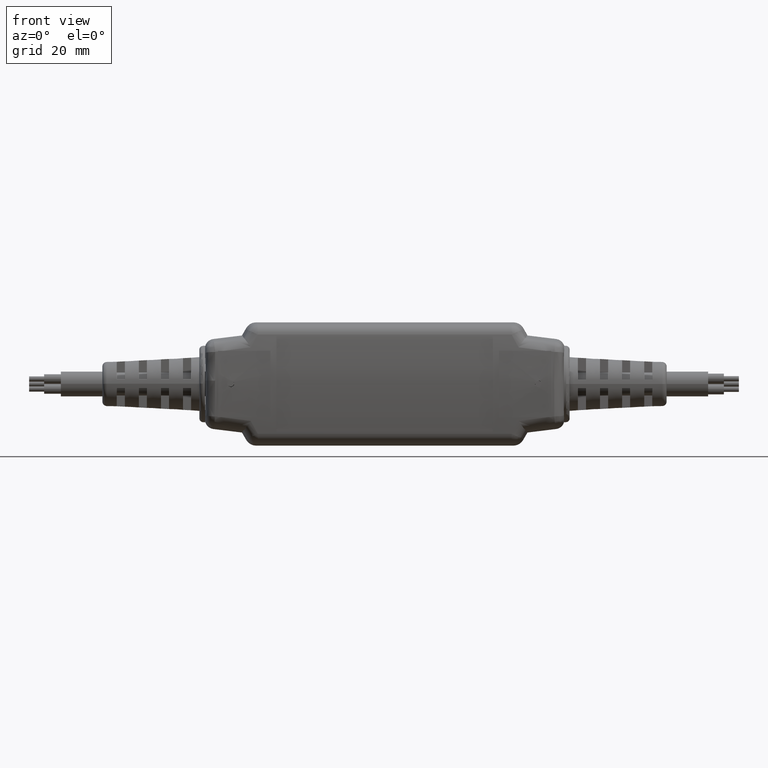
[diagram: clean part render]
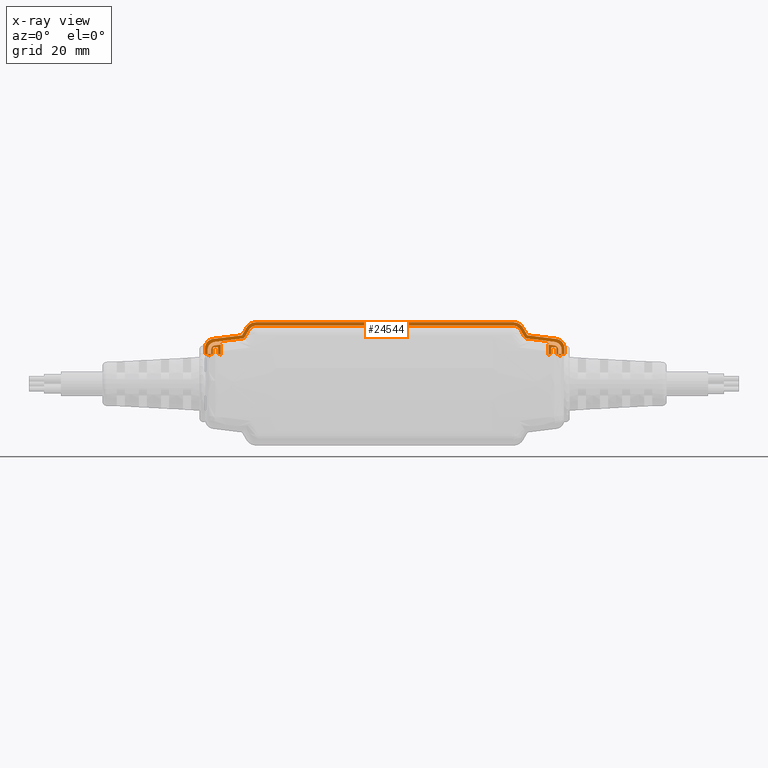
[diagram: x-ray — body ghosted, one internal face saturated and labeled with its STEP entity id]
A machine part, front view, then the same camera in x-ray: the body is ghosted and one INTERNAL B-rep face — a face not visible from any outside direction — is saturated and labeled: STEP entity #24544.
In plain terms, the highlighted planar face has unit normal (0, -1, 0).
Its self-contained STEP definition (entity closure, byte-faithful):
#41 = EDGE_CURVE ( 'NONE', #25325, #22077, #28038, .T. ) ;
#85 = DIRECTION ( 'NONE',  ( 1.000000000000000000, 7.811323723728241151E-34, 1.231274605858855692E-16 ) ) ;
#123 = DIRECTION ( 'NONE',  ( -1.000000000000000000, 0.000000000000000000, 0.000000000000000000 ) ) ;
#196 = PLANE ( 'NONE',  #10932 ) ;
#290 = ORIENTED_EDGE ( 'NONE', *, *, #3641, .F. ) ;
#393 = EDGE_CURVE ( 'NONE', #17405, #26336, #9458, .T. ) ;
#474 = CARTESIAN_POINT ( 'NONE',  ( 2.193936532521163496, 0.02195188560991318677, 0.4832718722922019761 ) ) ;
#497 = LINE ( 'NONE', #2309, #23748 ) ;
#509 = CARTESIAN_POINT ( 'NONE',  ( -1.864769649509606442, 0.02195188560991318677, 0.5463574545593754550 ) ) ;
#624 = CIRCLE ( 'NONE', #18016, 0.1274999999999999467 ) ;
#652 = CARTESIAN_POINT ( 'NONE',  ( -1.915653445400710808, 0.02195188560991318677, 0.5360488502115947629 ) ) ;
#762 = CARTESIAN_POINT ( 'NONE',  ( -2.263999999999999790, 0.02195188560991318677, 0.3919999999999775886 ) ) ;
#789 = LINE ( 'NONE', #28366, #5642 ) ;
#828 = EDGE_CURVE ( 'NONE', #26299, #26961, #3037, .T. ) ;
#888 = CARTESIAN_POINT ( 'NONE',  ( 2.344499999999999584, 0.02195188560991317983, 0.5292467826783000540 ) ) ;
#1062 = CARTESIAN_POINT ( 'NONE',  ( -2.286500000000000199, 0.02195188560991318677, 0.3669999999999775109 ) ) ;
#1130 = CARTESIAN_POINT ( 'NONE',  ( -2.344500000000000028, 0.02195188560991318677, 0.4627866221473150854 ) ) ;
#1161 = VECTOR ( 'NONE', #85, 39.37007874015748143 ) ;
#1174 = LINE ( 'NONE', #17199, #5734 ) ;
#1195 = CARTESIAN_POINT ( 'NONE',  ( 2.263999999999999790, 0.02195188560991318677, 0.3919999999999777551 ) ) ;
#1329 = DIRECTION ( 'NONE',  ( -0.9925461516413227603, 7.731507567897354636E-19, 0.1218693434051404539 ) ) ;
#1407 = DIRECTION ( 'NONE',  ( 3.081487911019576339E-33, 6.344095530403291597E-18, 1.000000000000000000 ) ) ;
#1426 = AXIS2_PLACEMENT_3D ( 'NONE', #10788, #15142, #26695 ) ;
#1472 = ORIENTED_EDGE ( 'NONE', *, *, #9272, .T. ) ;
#1556 = CARTESIAN_POINT ( 'NONE',  ( -1.776662360926151596, 0.02195188560991317983, 0.7767884703206289210 ) ) ;
#1612 = DIRECTION ( 'NONE',  ( 6.621448624706696539E-49, -1.000000000000000000, 2.283887004554346313E-16 ) ) ;
#1699 = CARTESIAN_POINT ( 'NONE',  ( 2.223938055598596808, 0.02195188560991318677, 0.4795881484547210860 ) ) ;
#1791 = ORIENTED_EDGE ( 'NONE', *, *, #14974, .F. ) ;
#1822 = DIRECTION ( 'NONE',  ( 3.081487911019576339E-33, 6.344095530403292367E-18, 1.000000000000000000 ) ) ;
#1896 = ORIENTED_EDGE ( 'NONE', *, *, #16122, .T. ) ;
#1913 = DIRECTION ( 'NONE',  ( 1.000000000000000000, -4.163215699622375742E-50, -3.081487911019578049E-33 ) ) ;
#1976 = VECTOR ( 'NONE', #25384, 39.37007874015748143 ) ;
#2005 = EDGE_CURVE ( 'NONE', #3880, #3658, #22269, .T. ) ;
#2031 = ORIENTED_EDGE ( 'NONE', *, *, #828, .T. ) ;
#2047 = ORIENTED_EDGE ( 'NONE', *, *, #3287, .F. ) ;
#2118 = VERTEX_POINT ( 'NONE', #15275 ) ;
#2148 = CARTESIAN_POINT ( 'NONE',  ( 1.823405385324248451, 0.02195188560991318677, 0.6148271771636935057 ) ) ;
#2289 = EDGE_CURVE ( 'NONE', #25572, #14727, #7164, .T. ) ;
#2298 =( BOUNDED_CURVE ( )  B_SPLINE_CURVE ( 3, ( #12664, #26461, #888, #28768 ),
 .UNSPECIFIED., .F., .T. ) 
 B_SPLINE_CURVE_WITH_KNOTS ( ( 4, 4 ),
 ( 6.183164987832681092, 7.630805771195890763 ),
 .UNSPECIFIED. ) 
 CURVE ( )  GEOMETRIC_REPRESENTATION_ITEM ( )  RATIONAL_B_SPLINE_CURVE ( ( 1.000000000000000000, 0.8328540940731947728, 0.8328540940731947728, 1.000000000000000000 ) ) 
 REPRESENTATION_ITEM ( '' )  );
#2309 = CARTESIAN_POINT ( 'NONE',  ( -2.294031527742058874, 0.02195188560991318677, 0.4709817522554268221 ) ) ;
#2579 = EDGE_CURVE ( 'NONE', #16319, #3658, #2298, .T. ) ;
#2597 = DIRECTION ( 'NONE',  ( -1.000000000000000000, 4.163215699622375742E-50, 3.081487911019578049E-33 ) ) ;
#2603 = ORIENTED_EDGE ( 'NONE', *, *, #25639, .T. ) ;
#2649 = CARTESIAN_POINT ( 'NONE',  ( 2.206500000000000128, 0.02195188560991318677, 0.4464664285633355711 ) ) ;
#2708 = VERTEX_POINT ( 'NONE', #14447 ) ;
#2717 = DIRECTION ( 'NONE',  ( -0.9925461516413227603, 7.731507567897382562E-19, 0.1218693434051408842 ) ) ;
#2920 = ORIENTED_EDGE ( 'NONE', *, *, #22713, .T. ) ;
#2968 = VECTOR ( 'NONE', #15564, 39.37007874015748143 ) ;
#3019 = LINE ( 'NONE', #23309, #21004 ) ;
#3037 = LINE ( 'NONE', #26219, #8783 ) ;
#3044 = ORIENTED_EDGE ( 'NONE', *, *, #5739, .T. ) ;
#3062 = EDGE_CURVE ( 'NONE', #13336, #22922, #19138, .T. ) ;
#3068 = DIRECTION ( 'NONE',  ( 3.081487911019576339E-33, 6.344095530403292367E-18, 1.000000000000000000 ) ) ;
#3172 = LINE ( 'NONE', #15114, #26141 ) ;
#3200 = DIRECTION ( 'NONE',  ( -1.000000000000000000, 4.163215699622375742E-50, 3.081487911019577365E-33 ) ) ;
#3275 = CARTESIAN_POINT ( 'NONE',  ( 2.156293839814855229, 0.02195188560991318677, 0.3919999999999787543 ) ) ;
#3287 = EDGE_CURVE ( 'NONE', #16210, #10873, #17536, .T. ) ;
#3480 = CARTESIAN_POINT ( 'NONE',  ( -1.804039906487935108, 0.02195188560991318677, 0.7293691704210883975 ) ) ;
#3530 = VERTEX_POINT ( 'NONE', #18502 ) ;
#3600 = DIRECTION ( 'NONE',  ( 0.4999999999999988898, 5.494147893364567314E-18, 0.8660254037844391517 ) ) ;
#3607 = ORIENTED_EDGE ( 'NONE', *, *, #25117, .F. ) ;
#3615 = EDGE_CURVE ( 'NONE', #3530, #26299, #20877, .T. ) ;
#3641 = EDGE_CURVE ( 'NONE', #9752, #8658, #21899, .T. ) ;
#3658 = VERTEX_POINT ( 'NONE', #26333 ) ;
#3701 = CARTESIAN_POINT ( 'NONE',  ( 2.213507487245796490, 0.02195188560991318677, 0.5035378322827116504 ) ) ;
#3751 = LINE ( 'NONE', #13173, #25966 ) ;
#3880 = VERTEX_POINT ( 'NONE', #14569 ) ;
#3975 = EDGE_CURVE ( 'NONE', #17762, #14720, #15156, .T. ) ;
#4033 = VECTOR ( 'NONE', #1329, 39.37007874015748854 ) ;
#4226 = DIRECTION ( 'NONE',  ( 0.5000000000000001110, -5.494147893364562691E-18, -0.8660254037844385966 ) ) ;
#4255 = CARTESIAN_POINT ( 'NONE',  ( -2.234838855182186279, 0.02195188560991318677, 0.5870607597139151368 ) ) ;
#4281 = CIRCLE ( 'NONE', #12497, 0.05749999999999986372 ) ;
#4293 = CIRCLE ( 'NONE', #1426, 0.04499999999999965833 ) ;
#4396 = VECTOR ( 'NONE', #10127, 39.37007874015748143 ) ;
#4504 = CARTESIAN_POINT ( 'NONE',  ( -1.856892408041317610, 0.02195188560991318677, 0.5926626003398335341 ) ) ;
#4603 = EDGE_CURVE ( 'NONE', #14727, #27653, #14181, .T. ) ;
#4710 = DIRECTION ( 'NONE',  ( 0.4999999999999997224, 5.494147893364564232E-18, 0.8660254037844388186 ) ) ;
#4824 = VECTOR ( 'NONE', #3068, 39.37007874015748143 ) ;
#5001 = ORIENTED_EDGE ( 'NONE', *, *, #13079, .F. ) ;
#5007 = EDGE_CURVE ( 'NONE', #28267, #27523, #25143, .T. ) ;
#5267 = CIRCLE ( 'NONE', #11109, 0.04500000000000019956 ) ;
#5418 = CARTESIAN_POINT ( 'NONE',  ( -3.440243432900442766, 0.02195188560991318677, 0.3919999999999775331 ) ) ;
#5429 = DIRECTION ( 'NONE',  ( -0.7660444431189752379, -4.077906001611009430E-18, -0.6427876096865424715 ) ) ;
#5506 = ORIENTED_EDGE ( 'NONE', *, *, #19780, .T. ) ;
#5642 = VECTOR ( 'NONE', #27907, 39.37007874015748854 ) ;
#5653 = EDGE_CURVE ( 'NONE', #15229, #2118, #21505, .T. ) ;
#5734 = VECTOR ( 'NONE', #17932, 39.37007874015748143 ) ;
#5739 = EDGE_CURVE ( 'NONE', #6940, #2708, #3172, .T. ) ;
#5874 = EDGE_CURVE ( 'NONE', #8658, #7186, #23797, .T. ) ;
#5876 = CARTESIAN_POINT ( 'NONE',  ( -1.774454827976430948, 0.02195188560991318677, 0.6996120295489280938 ) ) ;
#6031 = CARTESIAN_POINT ( 'NONE',  ( 2.213507487245796934, 0.02195188560991318677, 0.5035378322827115394 ) ) ;
#6033 = CARTESIAN_POINT ( 'NONE',  ( 2.241500000000000270, 0.02195188560991318677, 0.7761379704510726896 ) ) ;
#6058 =( BOUNDED_CURVE ( )  B_SPLINE_CURVE ( 3, ( #13342, #1556, #6818, #27152 ),
 .UNSPECIFIED., .F., .T. ) 
 B_SPLINE_CURVE_WITH_KNOTS ( ( 4, 4 ),
 ( 5.761365397245762132, 6.805005217113410332 ),
 .UNSPECIFIED. ) 
 CURVE ( )  GEOMETRIC_REPRESENTATION_ITEM ( )  RATIONAL_B_SPLINE_CURVE ( ( 1.000000000000000000, 0.9112756439590405932, 0.9112756439590405932, 1.000000000000000000 ) ) 
 REPRESENTATION_ITEM ( '' )  );
#6157 = VECTOR ( 'NONE', #20706, 39.37007874015748143 ) ;
#6331 = DIRECTION ( 'NONE',  ( -1.000000000000000000, 0.000000000000000000, 0.000000000000000000 ) ) ;
#6452 = CARTESIAN_POINT ( 'NONE',  ( 2.138500000000000512, 0.02195188560991318677, 0.5127475936686164415 ) ) ;
#6537 = VERTEX_POINT ( 'NONE', #9604 ) ;
#6538 = LINE ( 'NONE', #15770, #17588 ) ;
#6599 = EDGE_CURVE ( 'NONE', #21293, #14720, #16850, .T. ) ;
#6696 = DIRECTION ( 'NONE',  ( 1.714226300718495630E-34, -1.000000000000000000, 2.283887004554346806E-16 ) ) ;
#6780 = ORIENTED_EDGE ( 'NONE', *, *, #10704, .F. ) ;
#6818 = CARTESIAN_POINT ( 'NONE',  ( -1.729291637138610449, 0.02195188560991319024, 0.8041379704510728255 ) ) ;
#6844 = CARTESIAN_POINT ( 'NONE',  ( 2.171499999999999098, 0.02195188560991318677, 0.3919999999999775331 ) ) ;
#6940 = VERTEX_POINT ( 'NONE', #3275 ) ;
#7000 = CARTESIAN_POINT ( 'NONE',  ( -1.862376528494548822, 0.02195188560991318677, 0.6373271771636932481 ) ) ;
#7086 = EDGE_CURVE ( 'NONE', #20277, #29200, #9933, .T. ) ;
#7119 = VECTOR ( 'NONE', #23823, 39.37007874015748854 ) ;
#7125 = LINE ( 'NONE', #652, #29407 ) ;
#7164 = CIRCLE ( 'NONE', #8632, 0.1025000000000000633 ) ;
#7186 = VERTEX_POINT ( 'NONE', #7934 ) ;
#7201 = ORIENTED_EDGE ( 'NONE', *, *, #19820, .T. ) ;
#7333 = CIRCLE ( 'NONE', #23275, 0.1274999999999999467 ) ;
#7476 = LINE ( 'NONE', #12616, #7119 ) ;
#7543 = CARTESIAN_POINT ( 'NONE',  ( 2.171499999999999986, 0.02195188560991318677, 0.4634217051216981131 ) ) ;
#7762 = ORIENTED_EDGE ( 'NONE', *, *, #2005, .F. ) ;
#7830 = EDGE_CURVE ( 'NONE', #21293, #20547, #25550, .T. ) ;
#7880 = CARTESIAN_POINT ( 'NONE',  ( -2.218991607699027480, 0.02195188560991318677, 0.5482024091065709204 ) ) ;
#7934 = CARTESIAN_POINT ( 'NONE',  ( 2.263999999999999790, 0.02195188560991318677, 0.4464664285633355711 ) ) ;
#8292 = CARTESIAN_POINT ( 'NONE',  ( -1.674536546015044536, 0.02195188560991318677, 0.8041379704510728255 ) ) ;
#8302 = CARTESIAN_POINT ( 'NONE',  ( -2.206500000000000128, 0.02195188560991318677, 0.4464664285633354046 ) ) ;
#8632 = AXIS2_PLACEMENT_3D ( 'NONE', #8302, #26501, #12839 ) ;
#8633 = CARTESIAN_POINT ( 'NONE',  ( -2.171499999999999986, 0.02195188560991318677, 0.4763054132773840155 ) ) ;
#8658 = VERTEX_POINT ( 'NONE', #13814 ) ;
#8750 = CARTESIAN_POINT ( 'NONE',  ( -2.344500000000000473, 0.02195188560991318677, 0.3919999999999775331 ) ) ;
#8783 = VECTOR ( 'NONE', #5429, 39.37007874015748854 ) ;
#8803 = DIRECTION ( 'NONE',  ( 0.5000000000000002220, -5.494147893364561151E-18, -0.8660254037844384856 ) ) ;
#8955 = EDGE_CURVE ( 'NONE', #29778, #13805, #27302, .T. ) ;
#8969 = CARTESIAN_POINT ( 'NONE',  ( -2.300610301673009950, 0.02195188560991317983, 0.5789850415365909164 ) ) ;
#8986 = EDGE_CURVE ( 'NONE', #19113, #6940, #3019, .T. ) ;
#8994 = VECTOR ( 'NONE', #1913, 39.37007874015748143 ) ;
#9008 = CARTESIAN_POINT ( 'NONE',  ( -1.664036588993915933, 0.02195188560991318677, 0.7633620295489271790 ) ) ;
#9016 = EDGE_CURVE ( 'NONE', #6537, #18613, #22020, .T. ) ;
#9020 = DIRECTION ( 'NONE',  ( 1.714226300718495630E-34, -1.000000000000000000, 2.283887004554346806E-16 ) ) ;
#9051 = CARTESIAN_POINT ( 'NONE',  ( 1.776662360926151596, 0.02195188560991314861, 0.7767884703206293651 ) ) ;
#9256 = FACE_OUTER_BOUND ( 'NONE', #22160, .T. ) ;
#9272 = EDGE_CURVE ( 'NONE', #26961, #10111, #6538, .T. ) ;
#9278 = EDGE_CURVE ( 'NONE', #11996, #12338, #13528, .T. ) ;
#9337 = DIRECTION ( 'NONE',  ( -3.081487911019576339E-33, -6.344095530403291597E-18, -1.000000000000000000 ) ) ;
#9458 =( BOUNDED_CURVE ( )  B_SPLINE_CURVE ( 3, ( #12642, #16893, #17192, #26443 ),
 .UNSPECIFIED., .F., .T. ) 
 B_SPLINE_CURVE_WITH_KNOTS ( ( 4, 4 ),
 ( 5.558907354727067762, 7.007463259632100261 ),
 .UNSPECIFIED. ) 
 CURVE ( )  GEOMETRIC_REPRESENTATION_ITEM ( )  RATIONAL_B_SPLINE_CURVE ( ( 1.000000000000000000, 0.8326520280856734013, 0.8326520280856734013, 1.000000000000000000 ) ) 
 REPRESENTATION_ITEM ( '' )  );
#9528 = CARTESIAN_POINT ( 'NONE',  ( -2.263999999999999790, 0.02195188560991318677, 0.4464664285633354046 ) ) ;
#9604 = CARTESIAN_POINT ( 'NONE',  ( -2.263999999999999790, 0.02195188560991318677, 0.3919999999999775886 ) ) ;
#9746 = CARTESIAN_POINT ( 'NONE',  ( 2.263999999999999790, 0.02195188560991318677, 0.3919999999999777551 ) ) ;
#9752 = VERTEX_POINT ( 'NONE', #16014 ) ;
#9795 = CARTESIAN_POINT ( 'NONE',  ( -2.307193416829814048, 0.02195188560991318677, 0.5781767366326896473 ) ) ;
#9802 = LINE ( 'NONE', #19047, #15805 ) ;
#9809 = VECTOR ( 'NONE', #4226, 39.37007874015748854 ) ;
#9830 = ORIENTED_EDGE ( 'NONE', *, *, #15869, .T. ) ;
#9933 = LINE ( 'NONE', #9795, #14882 ) ;
#10085 = CIRCLE ( 'NONE', #27022, 0.05749999999999986372 ) ;
#10111 = VERTEX_POINT ( 'NONE', #13195 ) ;
#10127 = DIRECTION ( 'NONE',  ( -1.000000000000000000, 4.163215699622375742E-50, 3.081487911019578049E-33 ) ) ;
#10214 = VECTOR ( 'NONE', #17153, 39.37007874015748143 ) ;
#10417 = VERTEX_POINT ( 'NONE', #16495 ) ;
#10620 = EDGE_CURVE ( 'NONE', #18945, #19113, #21793, .T. ) ;
#10704 = EDGE_CURVE ( 'NONE', #12338, #28267, #7333, .T. ) ;
#10715 = VECTOR ( 'NONE', #19537, 39.37007874015748143 ) ;
#10788 = CARTESIAN_POINT ( 'NONE',  ( 1.862376528494548378, 0.02195188560991318677, 0.6373271771636930261 ) ) ;
#10873 = VERTEX_POINT ( 'NONE', #6452 ) ;
#10915 = CARTESIAN_POINT ( 'NONE',  ( 1.856892408041316722, 0.02195188560991318677, 0.5926626003398337561 ) ) ;
#10932 = AXIS2_PLACEMENT_3D ( 'NONE', #27888, #1612, #19474 ) ;
#11054 = CARTESIAN_POINT ( 'NONE',  ( -2.181148857572367206, 0.02195188560991319024, 0.4848420013457589994 ) ) ;
#11109 = AXIS2_PLACEMENT_3D ( 'NONE', #7000, #6696, #23193 ) ;
#11170 = DIRECTION ( 'NONE',  ( -1.000000000000000000, 0.000000000000000000, 0.000000000000000000 ) ) ;
#11391 = EDGE_CURVE ( 'NONE', #20547, #13898, #28331, .T. ) ;
#11444 = CARTESIAN_POINT ( 'NONE',  ( 1.804039906487935330, 0.02195188560991318677, 0.7293691704210890636 ) ) ;
#11445 = DIRECTION ( 'NONE',  ( 0.9925461516413227603, 7.731507567897377747E-19, 0.1218693434051408425 ) ) ;
#11479 = VECTOR ( 'NONE', #21537, 39.37007874015748143 ) ;
#11576 = LINE ( 'NONE', #19822, #1976 ) ;
#11605 = DIRECTION ( 'NONE',  ( -0.7660444431189752379, 4.077906001611009430E-18, 0.6427876096865424715 ) ) ;
#11614 = CARTESIAN_POINT ( 'NONE',  ( -2.309000000000000163, 0.02195188560991318677, 0.4464664285633354046 ) ) ;
#11632 = CARTESIAN_POINT ( 'NONE',  ( -2.138500000000000512, 0.02195188560991317983, 0.3770691955741050094 ) ) ;
#11828 = DIRECTION ( 'NONE',  ( -0.9925461516413227603, -7.731507567897382562E-19, -0.1218693434051408842 ) ) ;
#11871 = DIRECTION ( 'NONE',  ( -1.000000000000000000, 0.000000000000000000, 0.000000000000000000 ) ) ;
#11996 = VERTEX_POINT ( 'NONE', #9008 ) ;
#12033 = LINE ( 'NONE', #16562, #25262 ) ;
#12055 = CARTESIAN_POINT ( 'NONE',  ( -2.241499999999999826, 0.02195188560991318677, 0.4597379812842175006 ) ) ;
#12057 = VERTEX_POINT ( 'NONE', #1130 ) ;
#12338 = VERTEX_POINT ( 'NONE', #21659 ) ;
#12497 = AXIS2_PLACEMENT_3D ( 'NONE', #13738, #20692, #11170 ) ;
#12524 = ORIENTED_EDGE ( 'NONE', *, *, #19168, .F. ) ;
#12616 = CARTESIAN_POINT ( 'NONE',  ( 2.286499999999999311, 0.02195188560991318677, 0.3669999999999786211 ) ) ;
#12642 = CARTESIAN_POINT ( 'NONE',  ( -2.223938055598595920, 0.02195188560991318677, 0.4795881484547213636 ) ) ;
#12664 = CARTESIAN_POINT ( 'NONE',  ( 2.234838855182186279, 0.02195188560991318677, 0.5870607597139152478 ) ) ;
#12665 = VERTEX_POINT ( 'NONE', #10915 ) ;
#12701 = ORIENTED_EDGE ( 'NONE', *, *, #8986, .T. ) ;
#12839 = DIRECTION ( 'NONE',  ( -1.000000000000000000, 0.000000000000000000, 0.000000000000000000 ) ) ;
#12923 = ORIENTED_EDGE ( 'NONE', *, *, #7830, .T. ) ;
#13039 = EDGE_CURVE ( 'NONE', #26855, #29778, #20495, .T. ) ;
#13044 = CARTESIAN_POINT ( 'NONE',  ( -2.213507487245795602, 0.02195188560991318677, 0.5035378322827113173 ) ) ;
#13079 = EDGE_CURVE ( 'NONE', #15531, #24293, #4281, .T. ) ;
#13127 = VECTOR ( 'NONE', #2717, 39.37007874015748854 ) ;
#13173 = CARTESIAN_POINT ( 'NONE',  ( 2.309000000000000163, 0.02195188560991318677, 0.3919999999999777551 ) ) ;
#13195 = CARTESIAN_POINT ( 'NONE',  ( -2.316293839814855371, 0.02195188560991318677, 0.3919999999999775331 ) ) ;
#13304 = EDGE_CURVE ( 'NONE', #17286, #15531, #18118, .T. ) ;
#13312 = DIRECTION ( 'NONE',  ( -3.081487911019576339E-33, -6.344095530403292367E-18, -1.000000000000000000 ) ) ;
#13336 = VERTEX_POINT ( 'NONE', #18830 ) ;
#13342 = CARTESIAN_POINT ( 'NONE',  ( -1.804039906487935108, 0.02195188560991318677, 0.7293691704210883975 ) ) ;
#13461 = ORIENTED_EDGE ( 'NONE', *, *, #4603, .F. ) ;
#13489 = CARTESIAN_POINT ( 'NONE',  ( 0.7499034454007098560, 0.02195188560991320065, 2.555187079135014638 ) ) ;
#13528 = LINE ( 'NONE', #19730, #1161 ) ;
#13738 = CARTESIAN_POINT ( 'NONE',  ( -2.206500000000000128, 0.02195188560991318677, 0.4464664285633354046 ) ) ;
#13805 = VERTEX_POINT ( 'NONE', #21482 ) ;
#13814 = CARTESIAN_POINT ( 'NONE',  ( 2.264000000000000234, 0.02195188560991318677, 0.3919999999999777551 ) ) ;
#13883 = CARTESIAN_POINT ( 'NONE',  ( -2.256706160185145027, 0.02195188560991318677, 0.3919999999999775886 ) ) ;
#13898 = VERTEX_POINT ( 'NONE', #17701 ) ;
#13909 = CARTESIAN_POINT ( 'NONE',  ( 2.234838855182186279, 0.02195188560991318677, 0.5870607597139152478 ) ) ;
#14181 = LINE ( 'NONE', #4504, #28677 ) ;
#14203 = ORIENTED_EDGE ( 'NONE', *, *, #27112, .F. ) ;
#14399 = VECTOR ( 'NONE', #26204, 39.37007874015748854 ) ;
#14447 = CARTESIAN_POINT ( 'NONE',  ( 2.138500000000002732, 0.02195188560991031060, 0.3770691955741065082 ) ) ;
#14550 = ORIENTED_EDGE ( 'NONE', *, *, #21706, .T. ) ;
#14569 = CARTESIAN_POINT ( 'NONE',  ( 2.344500000000000028, 0.02195188560991318677, 0.3919999999999775331 ) ) ;
#14720 = VERTEX_POINT ( 'NONE', #16978 ) ;
#14727 = VERTEX_POINT ( 'NONE', #7880 ) ;
#14882 = VECTOR ( 'NONE', #23688, 39.37007874015748854 ) ;
#14965 = CARTESIAN_POINT ( 'NONE',  ( 2.171499999999999986, 0.02195188560991318677, 0.7761379704510726896 ) ) ;
#14974 = EDGE_CURVE ( 'NONE', #7186, #16210, #10085, .T. ) ;
#15056 = CARTESIAN_POINT ( 'NONE',  ( 2.206500000000000128, 0.02195188560991318677, 0.4464664285633355711 ) ) ;
#15114 = CARTESIAN_POINT ( 'NONE',  ( 2.126500000000000057, 0.02195188560991318677, 0.3669999999999786766 ) ) ;
#15121 = CARTESIAN_POINT ( 'NONE',  ( 2.241500000000001158, 0.02195188560991318330, 0.4703484891206319296 ) ) ;
#15142 = DIRECTION ( 'NONE',  ( 1.714226300718495630E-34, -1.000000000000000000, 2.283887004554346806E-16 ) ) ;
#15156 = LINE ( 'NONE', #15459, #10214 ) ;
#15229 = VERTEX_POINT ( 'NONE', #23966 ) ;
#15275 = CARTESIAN_POINT ( 'NONE',  ( -1.774454827976430948, 0.02195188560991318677, 0.6996120295489280938 ) ) ;
#15303 = ORIENTED_EDGE ( 'NONE', *, *, #3615, .T. ) ;
#15410 = CARTESIAN_POINT ( 'NONE',  ( -2.171500000000000430, 0.02195188560991318677, 0.4634217051216981687 ) ) ;
#15459 = CARTESIAN_POINT ( 'NONE',  ( -3.440243432900442766, 0.02195188560991318677, 0.3919999999999775331 ) ) ;
#15467 = ORIENTED_EDGE ( 'NONE', *, *, #9016, .F. ) ;
#15531 = VERTEX_POINT ( 'NONE', #13044 ) ;
#15564 = DIRECTION ( 'NONE',  ( -3.081487911019576339E-33, -6.344095530403292367E-18, -1.000000000000000000 ) ) ;
#15770 = CARTESIAN_POINT ( 'NONE',  ( -2.286500000000000199, 0.02195188560991318677, 0.3669999999999775109 ) ) ;
#15786 = LINE ( 'NONE', #20500, #8994 ) ;
#15805 = VECTOR ( 'NONE', #11605, 39.37007874015748854 ) ;
#15843 = CARTESIAN_POINT ( 'NONE',  ( 1.729291637138611337, 0.02195188560991314861, 0.8041379704510727144 ) ) ;
#15863 = ORIENTED_EDGE ( 'NONE', *, *, #19021, .F. ) ;
#15869 = EDGE_CURVE ( 'NONE', #12057, #20277, #26176, .T. ) ;
#15946 = EDGE_CURVE ( 'NONE', #15997, #17405, #497, .T. ) ;
#15983 = DIRECTION ( 'NONE',  ( -0.7660444431189752379, 4.077906001611009430E-18, 0.6427876096865424715 ) ) ;
#15997 = VERTEX_POINT ( 'NONE', #20760 ) ;
#15999 = ORIENTED_EDGE ( 'NONE', *, *, #3062, .T. ) ;
#16014 = CARTESIAN_POINT ( 'NONE',  ( 2.309000000000000608, 0.02195188560991318677, 0.3919999999999777551 ) ) ;
#16068 = ORIENTED_EDGE ( 'NONE', *, *, #9278, .F. ) ;
#16122 = EDGE_CURVE ( 'NONE', #18238, #15997, #22255, .T. ) ;
#16182 = EDGE_CURVE ( 'NONE', #26336, #3530, #22840, .T. ) ;
#16210 = VERTEX_POINT ( 'NONE', #6031 ) ;
#16319 = VERTEX_POINT ( 'NONE', #13909 ) ;
#16395 = DIRECTION ( 'NONE',  ( -1.714226300718495630E-34, 1.000000000000000000, -2.283887004554346806E-16 ) ) ;
#16441 = EDGE_CURVE ( 'NONE', #2118, #11996, #624, .T. ) ;
#16495 = CARTESIAN_POINT ( 'NONE',  ( 2.316293839814854483, 0.02195188560991318677, 0.3919999999999786988 ) ) ;
#16562 = CARTESIAN_POINT ( 'NONE',  ( -2.344500000000000028, 0.02195188560991318677, 0.7761379704510726896 ) ) ;
#16615 = VERTEX_POINT ( 'NONE', #8750 ) ;
#16655 = VECTOR ( 'NONE', #8803, 39.37007874015748854 ) ;
#16827 = VECTOR ( 'NONE', #1407, 39.37007874015748143 ) ;
#16850 = LINE ( 'NONE', #6033, #11479 ) ;
#16862 =( BOUNDED_CURVE ( )  B_SPLINE_CURVE ( 3, ( #474, #26044, #21485, #7543 ),
 .UNSPECIFIED., .F., .F. ) 
 B_SPLINE_CURVE_WITH_KNOTS ( ( 4, 4 ),
 ( 2.295151003472595264, 3.988034303706963879 ),
 .UNSPECIFIED. ) 
 CURVE ( )  GEOMETRIC_REPRESENTATION_ITEM ( )  RATIONAL_B_SPLINE_CURVE ( ( 1.000000000000000000, 0.7751015203229185691, 0.7751015203229185691, 1.000000000000000000 ) ) 
 REPRESENTATION_ITEM ( '' )  );
#16893 = CARTESIAN_POINT ( 'NONE',  ( -2.234469474318589999, 0.02195188560991319371, 0.4782950528315023098 ) ) ;
#16978 = CARTESIAN_POINT ( 'NONE',  ( 2.241500000000000270, 0.02195188560991318677, 0.3919999999999775331 ) ) ;
#17079 = CARTESIAN_POINT ( 'NONE',  ( -3.440243432900442766, 0.02195188560991318677, 0.3919999999999775331 ) ) ;
#17153 = DIRECTION ( 'NONE',  ( -1.000000000000000000, 4.163215699622375742E-50, 3.081487911019577365E-33 ) ) ;
#17192 = CARTESIAN_POINT ( 'NONE',  ( -2.241500000000000270, 0.02195188560991318330, 0.4703484891206322072 ) ) ;
#17199 = CARTESIAN_POINT ( 'NONE',  ( -2.138500000000000512, 0.02195188560991318677, 0.7761379704510726896 ) ) ;
#17212 = EDGE_CURVE ( 'NONE', #20620, #17762, #18283, .T. ) ;
#17225 = DIRECTION ( 'NONE',  ( -1.000000000000000000, 0.000000000000000000, 0.000000000000000000 ) ) ;
#17286 = VERTEX_POINT ( 'NONE', #23539 ) ;
#17393 = CARTESIAN_POINT ( 'NONE',  ( 2.218991607699028812, 0.02195188560991318677, 0.5482024091065711424 ) ) ;
#17405 = VERTEX_POINT ( 'NONE', #23071 ) ;
#17448 = ORIENTED_EDGE ( 'NONE', *, *, #11391, .T. ) ;
#17536 = LINE ( 'NONE', #3701, #4033 ) ;
#17588 = VECTOR ( 'NONE', #25020, 39.37007874015748854 ) ;
#17701 = CARTESIAN_POINT ( 'NONE',  ( 2.193936532521163496, 0.02195188560991318677, 0.4832718722922019761 ) ) ;
#17734 = ORIENTED_EDGE ( 'NONE', *, *, #28369, .T. ) ;
#17762 = VERTEX_POINT ( 'NONE', #27325 ) ;
#17793 = CARTESIAN_POINT ( 'NONE',  ( -2.263999999999999790, 0.02195188560991318677, 0.4464664285633354046 ) ) ;
#17932 = DIRECTION ( 'NONE',  ( 3.081487911019576339E-33, 6.344095530403291597E-18, 1.000000000000000000 ) ) ;
#18016 = AXIS2_PLACEMENT_3D ( 'NONE', #19509, #19638, #17225 ) ;
#18118 = LINE ( 'NONE', #509, #23630 ) ;
#18165 = VECTOR ( 'NONE', #1822, 39.37007874015748143 ) ;
#18238 = VERTEX_POINT ( 'NONE', #28402 ) ;
#18283 = LINE ( 'NONE', #21924, #29694 ) ;
#18321 = LINE ( 'NONE', #11614, #6157 ) ;
#18352 = EDGE_CURVE ( 'NONE', #10111, #16615, #20177, .T. ) ;
#18502 = CARTESIAN_POINT ( 'NONE',  ( -2.241499999999999826, 0.02195188560991318677, 0.3919999999999775331 ) ) ;
#18516 = CARTESIAN_POINT ( 'NONE',  ( -2.309000000000000163, 0.02195188560991318677, 0.3919999999999775886 ) ) ;
#18554 = VERTEX_POINT ( 'NONE', #3480 ) ;
#18593 = CARTESIAN_POINT ( 'NONE',  ( 1.804039906487935330, 0.02195188560991318677, 0.7293691704210890636 ) ) ;
#18613 = VERTEX_POINT ( 'NONE', #18516 ) ;
#18620 = EDGE_CURVE ( 'NONE', #13898, #18945, #16862, .T. ) ;
#18790 = DIRECTION ( 'NONE',  ( -3.081487911019576339E-33, -6.344095530403291597E-18, -1.000000000000000000 ) ) ;
#18830 = CARTESIAN_POINT ( 'NONE',  ( -2.156293839814856117, 0.02195188560991318677, 0.3919999999999775331 ) ) ;
#18872 = VECTOR ( 'NONE', #23089, 39.37007874015748143 ) ;
#18910 = CARTESIAN_POINT ( 'NONE',  ( 2.171499999999999986, 0.02195188560991318677, 0.4634217051216981131 ) ) ;
#18945 = VERTEX_POINT ( 'NONE', #18910 ) ;
#19021 = EDGE_CURVE ( 'NONE', #21212, #17286, #1174, .T. ) ;
#19047 = CARTESIAN_POINT ( 'NONE',  ( -2.126500000000000501, 0.02195188560991318677, 0.3669999999999776219 ) ) ;
#19113 = VERTEX_POINT ( 'NONE', #6844 ) ;
#19138 = LINE ( 'NONE', #23798, #19471 ) ;
#19168 = EDGE_CURVE ( 'NONE', #27653, #15229, #5267, .T. ) ;
#19471 = VECTOR ( 'NONE', #3200, 39.37007874015748143 ) ;
#19474 = DIRECTION ( 'NONE',  ( -1.000000000000000000, 4.163215699622375742E-50, 3.081487911019578049E-33 ) ) ;
#19509 = CARTESIAN_POINT ( 'NONE',  ( -1.664036588993915267, 0.02195188560991318677, 0.6358620295489274543 ) ) ;
#19537 = DIRECTION ( 'NONE',  ( -3.081487911019576339E-33, -6.344095530403292367E-18, -1.000000000000000000 ) ) ;
#19563 = CARTESIAN_POINT ( 'NONE',  ( 1.774454827976431615, 0.02195188560991318677, 0.6996120295489277607 ) ) ;
#19638 = DIRECTION ( 'NONE',  ( -1.714226300718495630E-34, 1.000000000000000000, -2.283887004554346806E-16 ) ) ;
#19717 = CARTESIAN_POINT ( 'NONE',  ( -2.309000000000000163, 0.02195188560991318677, 0.4464664285633354046 ) ) ;
#19730 = CARTESIAN_POINT ( 'NONE',  ( 1.664036588993914156, 0.02195188560991318677, 0.7633620295489276231 ) ) ;
#19780 = EDGE_CURVE ( 'NONE', #3880, #10417, #26210, .T. ) ;
#19781 = ORIENTED_EDGE ( 'NONE', *, *, #2579, .T. ) ;
#19820 = EDGE_CURVE ( 'NONE', #2708, #10873, #11576, .T. ) ;
#19822 = CARTESIAN_POINT ( 'NONE',  ( 2.138500000000000512, 0.02195188560991318677, 0.7761379704510726896 ) ) ;
#19881 = CARTESIAN_POINT ( 'NONE',  ( -3.440243432900442766, 0.02195188560991318677, 0.3919999999999775331 ) ) ;
#19915 = CARTESIAN_POINT ( 'NONE',  ( 2.218991607699028812, 0.02195188560991318677, 0.5482024091065710314 ) ) ;
#19955 = ORIENTED_EDGE ( 'NONE', *, *, #25712, .T. ) ;
#20166 = CARTESIAN_POINT ( 'NONE',  ( -2.344500000000000028, 0.02195188560991317983, 0.5292467826782998319 ) ) ;
#20177 = LINE ( 'NONE', #19881, #27964 ) ;
#20277 = VERTEX_POINT ( 'NONE', #26360 ) ;
#20302 = ORIENTED_EDGE ( 'NONE', *, *, #41, .F. ) ;
#20495 =( BOUNDED_CURVE ( )  B_SPLINE_CURVE ( 3, ( #29833, #15843, #9051, #11444 ),
 .UNSPECIFIED., .F., .T. ) 
 B_SPLINE_CURVE_WITH_KNOTS ( ( 4, 4 ),
 ( 5.761365397245763020, 6.805005217113405891 ),
 .UNSPECIFIED. ) 
 CURVE ( )  GEOMETRIC_REPRESENTATION_ITEM ( )  RATIONAL_B_SPLINE_CURVE ( ( 1.000000000000000000, 0.9112756439590414814, 0.9112756439590414814, 1.000000000000000000 ) ) 
 REPRESENTATION_ITEM ( '' )  );
#20500 = CARTESIAN_POINT ( 'NONE',  ( -2.331500000000000128, 0.02195188560991318677, 0.8041379704510728255 ) ) ;
#20547 = VERTEX_POINT ( 'NONE', #22031 ) ;
#20620 = VERTEX_POINT ( 'NONE', #29060 ) ;
#20692 = DIRECTION ( 'NONE',  ( 1.714226300718495630E-34, -1.000000000000000000, 2.283887004554346806E-16 ) ) ;
#20706 = DIRECTION ( 'NONE',  ( 3.081487911019576339E-33, 6.344095530403291597E-18, 1.000000000000000000 ) ) ;
#20760 = CARTESIAN_POINT ( 'NONE',  ( -2.193936532521163052, 0.02195188560991318677, 0.4832718722922021426 ) ) ;
#20817 = VECTOR ( 'NONE', #21471, 39.37007874015748143 ) ;
#20877 = LINE ( 'NONE', #17079, #20817 ) ;
#20881 = LINE ( 'NONE', #9528, #27446 ) ;
#21004 = VECTOR ( 'NONE', #21487, 39.37007874015748143 ) ;
#21105 = EDGE_CURVE ( 'NONE', #22922, #18238, #29548, .T. ) ;
#21212 = VERTEX_POINT ( 'NONE', #11632 ) ;
#21269 = VECTOR ( 'NONE', #3600, 39.37007874015748854 ) ;
#21293 = VERTEX_POINT ( 'NONE', #26777 ) ;
#21471 = DIRECTION ( 'NONE',  ( -1.000000000000000000, 4.163215699622375742E-50, 3.081487911019577365E-33 ) ) ;
#21482 = CARTESIAN_POINT ( 'NONE',  ( 1.859601222795639108, 0.02195188560991318677, 0.6331341476407406077 ) ) ;
#21485 = CARTESIAN_POINT ( 'NONE',  ( 2.171500000000000430, 0.02195188560991318330, 0.4763054132773840710 ) ) ;
#21487 = DIRECTION ( 'NONE',  ( -1.000000000000000000, 4.163215699622375742E-50, 3.081487911019577365E-33 ) ) ;
#21505 = LINE ( 'NONE', #5876, #21269 ) ;
#21537 = DIRECTION ( 'NONE',  ( -3.081487911019576339E-33, -6.344095530403292367E-18, -1.000000000000000000 ) ) ;
#21560 = CARTESIAN_POINT ( 'NONE',  ( 2.344500000000000028, 0.02195188560991318677, 0.7761379704510726896 ) ) ;
#21659 = CARTESIAN_POINT ( 'NONE',  ( 1.664036588993914156, 0.02195188560991318677, 0.7633620295489272900 ) ) ;
#21706 = EDGE_CURVE ( 'NONE', #22300, #26855, #15786, .T. ) ;
#21777 = CARTESIAN_POINT ( 'NONE',  ( 2.309000000000000163, 0.02195188560991318677, 0.4464664285633355711 ) ) ;
#21793 = LINE ( 'NONE', #14965, #10715 ) ;
#21798 = ORIENTED_EDGE ( 'NONE', *, *, #393, .T. ) ;
#21899 = LINE ( 'NONE', #1195, #4396 ) ;
#21924 = CARTESIAN_POINT ( 'NONE',  ( 2.286499999999999311, 0.02195188560991318677, 0.3669999999999786211 ) ) ;
#22020 = LINE ( 'NONE', #762, #25865 ) ;
#22031 = CARTESIAN_POINT ( 'NONE',  ( 2.223938055598596808, 0.02195188560991318677, 0.4795881484547210860 ) ) ;
#22077 = VERTEX_POINT ( 'NONE', #21777 ) ;
#22160 = EDGE_LOOP ( 'NONE', ( #2603, #19781, #7762, #5506, #2920, #29034, #25399, #25740, #12923, #17448, #25100, #23237, #12701, #3044, #7201, #2047, #1791, #25174, #290, #3607, #20302, #29024, #25015, #29812, #6780, #16068, #25254, #25095, #12524, #13461, #28852, #14203, #15467, #23829, #5001, #22579, #15863, #28300, #15999, #26498, #1896, #29797, #21798, #27890, #15303, #2031, #1472, #24895, #27088, #9830, #29968, #19955, #17734, #14550, #22929, #22771 ) ) ;
#22255 =( BOUNDED_CURVE ( )  B_SPLINE_CURVE ( 3, ( #15410, #8633, #11054, #25129 ),
 .UNSPECIFIED., .F., .T. ) 
 B_SPLINE_CURVE_WITH_KNOTS ( ( 4, 4 ),
 ( 2.295151003472622353, 3.988034303706976758 ),
 .UNSPECIFIED. ) 
 CURVE ( )  GEOMETRIC_REPRESENTATION_ITEM ( )  RATIONAL_B_SPLINE_CURVE ( ( 1.000000000000000000, 0.7751015203229221218, 0.7751015203229221218, 1.000000000000000000 ) ) 
 REPRESENTATION_ITEM ( '' )  );
#22269 = LINE ( 'NONE', #21560, #16827 ) ;
#22274 = CARTESIAN_POINT ( 'NONE',  ( -2.344500000000000028, 0.02195188560991318677, 0.4627866221473150854 ) ) ;
#22300 = VERTEX_POINT ( 'NONE', #8292 ) ;
#22399 = CARTESIAN_POINT ( 'NONE',  ( 2.234469474318590443, 0.02195188560991319024, 0.4782950528315020322 ) ) ;
#22472 = DIRECTION ( 'NONE',  ( -0.9925461516413227603, -7.731507567897377747E-19, -0.1218693434051408425 ) ) ;
#22579 = ORIENTED_EDGE ( 'NONE', *, *, #13304, .F. ) ;
#22713 = EDGE_CURVE ( 'NONE', #10417, #20620, #7476, .T. ) ;
#22771 = ORIENTED_EDGE ( 'NONE', *, *, #8955, .T. ) ;
#22840 = LINE ( 'NONE', #29552, #2968 ) ;
#22922 = VERTEX_POINT ( 'NONE', #25343 ) ;
#22929 = ORIENTED_EDGE ( 'NONE', *, *, #13039, .T. ) ;
#23071 = CARTESIAN_POINT ( 'NONE',  ( -2.223938055598595920, 0.02195188560991318677, 0.4795881484547213636 ) ) ;
#23089 = DIRECTION ( 'NONE',  ( -1.000000000000000000, 4.163215699622375742E-50, 3.081487911019577365E-33 ) ) ;
#23152 = CARTESIAN_POINT ( 'NONE',  ( -2.299712958070434521, 0.02195188560991319024, 1.035022651846021935 ) ) ;
#23193 = DIRECTION ( 'NONE',  ( 1.000000000000000000, 0.000000000000000000, 0.000000000000000000 ) ) ;
#23237 = ORIENTED_EDGE ( 'NONE', *, *, #10620, .T. ) ;
#23275 = AXIS2_PLACEMENT_3D ( 'NONE', #26813, #27121, #6331 ) ;
#23309 = CARTESIAN_POINT ( 'NONE',  ( -3.440243432900442766, 0.02195188560991318677, 0.3919999999999775331 ) ) ;
#23539 = CARTESIAN_POINT ( 'NONE',  ( -2.138500000000000512, 0.02195188560991318677, 0.5127475936686161084 ) ) ;
#23630 = VECTOR ( 'NONE', #22472, 39.37007874015748854 ) ;
#23688 = DIRECTION ( 'NONE',  ( 0.9925461516413227603, 7.731507567897368117E-19, 0.1218693434051406621 ) ) ;
#23748 = VECTOR ( 'NONE', #11828, 39.37007874015748854 ) ;
#23797 = LINE ( 'NONE', #9746, #4824 ) ;
#23798 = CARTESIAN_POINT ( 'NONE',  ( -3.440243432900442766, 0.02195188560991318677, 0.3919999999999775331 ) ) ;
#23823 = DIRECTION ( 'NONE',  ( -0.7660444431189752379, -4.077906001611009430E-18, -0.6427876096865424715 ) ) ;
#23829 = ORIENTED_EDGE ( 'NONE', *, *, #25260, .F. ) ;
#23870 = EDGE_CURVE ( 'NONE', #27523, #12665, #4293, .T. ) ;
#23896 = CARTESIAN_POINT ( 'NONE',  ( 1.823405385324248451, 0.02195188560991318677, 0.6148271771636935057 ) ) ;
#23966 = CARTESIAN_POINT ( 'NONE',  ( -1.823405385324248895, 0.02195188560991318677, 0.6148271771636930616 ) ) ;
#24293 = VERTEX_POINT ( 'NONE', #17793 ) ;
#24355 = DIRECTION ( 'NONE',  ( -0.7660444431189752379, -4.077906001611009430E-18, -0.6427876096865424715 ) ) ;
#24544 = ADVANCED_FACE ( 'NONE', ( #9256 ), #196, .F. ) ;
#24819 = CARTESIAN_POINT ( 'NONE',  ( -2.171500000000000430, 0.02195188560991318677, 0.7761379704510726896 ) ) ;
#24895 = ORIENTED_EDGE ( 'NONE', *, *, #18352, .T. ) ;
#25015 = ORIENTED_EDGE ( 'NONE', *, *, #23870, .F. ) ;
#25020 = DIRECTION ( 'NONE',  ( -0.7660444431189752379, 4.077906001611009430E-18, 0.6427876096865424715 ) ) ;
#25095 = ORIENTED_EDGE ( 'NONE', *, *, #5653, .F. ) ;
#25100 = ORIENTED_EDGE ( 'NONE', *, *, #18620, .T. ) ;
#25112 = CARTESIAN_POINT ( 'NONE',  ( -1.856892408041317610, 0.02195188560991318677, 0.5926626003398335341 ) ) ;
#25117 = EDGE_CURVE ( 'NONE', #22077, #9752, #3751, .T. ) ;
#25129 = CARTESIAN_POINT ( 'NONE',  ( -2.193936532521163052, 0.02195188560991318677, 0.4832718722922021426 ) ) ;
#25143 = LINE ( 'NONE', #2148, #9809 ) ;
#25174 = ORIENTED_EDGE ( 'NONE', *, *, #5874, .F. ) ;
#25254 = ORIENTED_EDGE ( 'NONE', *, *, #16441, .F. ) ;
#25260 = EDGE_CURVE ( 'NONE', #24293, #6537, #20881, .T. ) ;
#25262 = VECTOR ( 'NONE', #9337, 39.37007874015748143 ) ;
#25325 = VERTEX_POINT ( 'NONE', #19915 ) ;
#25343 = CARTESIAN_POINT ( 'NONE',  ( -2.171500000000000430, 0.02195188560991318677, 0.3919999999999775331 ) ) ;
#25384 = DIRECTION ( 'NONE',  ( 3.081487911019576339E-33, 6.344095530403291597E-18, 1.000000000000000000 ) ) ;
#25399 = ORIENTED_EDGE ( 'NONE', *, *, #3975, .T. ) ;
#25550 =( BOUNDED_CURVE ( )  B_SPLINE_CURVE ( 3, ( #29563, #15121, #22399, #1699 ),
 .UNSPECIFIED., .F., .T. ) 
 B_SPLINE_CURVE_WITH_KNOTS ( ( 4, 4 ),
 ( 5.558907354727068650, 7.007463259632105590 ),
 .UNSPECIFIED. ) 
 CURVE ( )  GEOMETRIC_REPRESENTATION_ITEM ( )  RATIONAL_B_SPLINE_CURVE ( ( 1.000000000000000000, 0.8326520280856725131, 0.8326520280856725131, 1.000000000000000000 ) ) 
 REPRESENTATION_ITEM ( '' )  );
#25572 = VERTEX_POINT ( 'NONE', #19717 ) ;
#25639 = EDGE_CURVE ( 'NONE', #13805, #16319, #789, .T. ) ;
#25712 = EDGE_CURVE ( 'NONE', #29200, #18554, #7125, .T. ) ;
#25740 = ORIENTED_EDGE ( 'NONE', *, *, #6599, .F. ) ;
#25865 = VECTOR ( 'NONE', #2597, 39.37007874015748143 ) ;
#25966 = VECTOR ( 'NONE', #13312, 39.37007874015748143 ) ;
#26044 = CARTESIAN_POINT ( 'NONE',  ( 2.181148857572367206, 0.02195188560991319024, 0.4848420013457591660 ) ) ;
#26141 = VECTOR ( 'NONE', #24355, 39.37007874015748854 ) ;
#26176 =( BOUNDED_CURVE ( )  B_SPLINE_CURVE ( 3, ( #22274, #20166, #8969, #4255 ),
 .UNSPECIFIED., .F., .T. ) 
 B_SPLINE_CURVE_WITH_KNOTS ( ( 4, 4 ),
 ( 1.793972189573488141, 3.241612972936700476 ),
 .UNSPECIFIED. ) 
 CURVE ( )  GEOMETRIC_REPRESENTATION_ITEM ( )  RATIONAL_B_SPLINE_CURVE ( ( 1.000000000000000000, 0.8328540940731941067, 0.8328540940731941067, 1.000000000000000000 ) ) 
 REPRESENTATION_ITEM ( '' )  );
#26204 = DIRECTION ( 'NONE',  ( 0.9925461516413229823, -7.731507567897355599E-19, -0.1218693434051404817 ) ) ;
#26210 = LINE ( 'NONE', #5418, #18872 ) ;
#26219 = CARTESIAN_POINT ( 'NONE',  ( -2.286500000000000199, 0.02195188560991318677, 0.3669999999999775109 ) ) ;
#26299 = VERTEX_POINT ( 'NONE', #13883 ) ;
#26329 = EDGE_CURVE ( 'NONE', #21212, #13336, #9802, .T. ) ;
#26333 = CARTESIAN_POINT ( 'NONE',  ( 2.344500000000000028, 0.02195188560991318677, 0.4627866221473153074 ) ) ;
#26336 = VERTEX_POINT ( 'NONE', #12055 ) ;
#26360 = CARTESIAN_POINT ( 'NONE',  ( -2.234838855182186279, 0.02195188560991318677, 0.5870607597139151368 ) ) ;
#26443 = CARTESIAN_POINT ( 'NONE',  ( -2.241499999999999826, 0.02195188560991318677, 0.4597379812842175006 ) ) ;
#26461 = CARTESIAN_POINT ( 'NONE',  ( 2.300610301673009506, 0.02195188560991317983, 0.5789850415365910274 ) ) ;
#26498 = ORIENTED_EDGE ( 'NONE', *, *, #21105, .T. ) ;
#26501 = DIRECTION ( 'NONE',  ( -1.714226300718495630E-34, 1.000000000000000000, -2.283887004554346806E-16 ) ) ;
#26695 = DIRECTION ( 'NONE',  ( 1.000000000000000000, 0.000000000000000000, 0.000000000000000000 ) ) ;
#26777 = CARTESIAN_POINT ( 'NONE',  ( 2.241500000000000270, 0.02195188560991318677, 0.4597379812842171121 ) ) ;
#26791 = CARTESIAN_POINT ( 'NONE',  ( 1.674536546015044980, 0.02195188560991318677, 0.8041379704510728255 ) ) ;
#26813 = CARTESIAN_POINT ( 'NONE',  ( 1.664036588993915267, 0.02195188560991318677, 0.6358620295489274543 ) ) ;
#26855 = VERTEX_POINT ( 'NONE', #26791 ) ;
#26909 = EDGE_CURVE ( 'NONE', #12665, #25325, #28793, .T. ) ;
#26961 = VERTEX_POINT ( 'NONE', #1062 ) ;
#27022 = AXIS2_PLACEMENT_3D ( 'NONE', #15056, #9020, #123 ) ;
#27061 = AXIS2_PLACEMENT_3D ( 'NONE', #2649, #16395, #11871 ) ;
#27088 = ORIENTED_EDGE ( 'NONE', *, *, #29745, .F. ) ;
#27112 = EDGE_CURVE ( 'NONE', #18613, #25572, #18321, .T. ) ;
#27121 = DIRECTION ( 'NONE',  ( -1.714226300718495630E-34, 1.000000000000000000, -2.283887004554346806E-16 ) ) ;
#27152 = CARTESIAN_POINT ( 'NONE',  ( -1.674536546015044536, 0.02195188560991318677, 0.8041379704510728255 ) ) ;
#27302 = LINE ( 'NONE', #13489, #16655 ) ;
#27325 = CARTESIAN_POINT ( 'NONE',  ( 2.256706160185142807, 0.02195188560991318677, 0.3919999999999775331 ) ) ;
#27327 = DIRECTION ( 'NONE',  ( -1.000000000000000000, 4.163215699622375742E-50, 3.081487911019577365E-33 ) ) ;
#27446 = VECTOR ( 'NONE', #18790, 39.37007874015748143 ) ;
#27523 = VERTEX_POINT ( 'NONE', #23896 ) ;
#27653 = VERTEX_POINT ( 'NONE', #25112 ) ;
#27888 = CARTESIAN_POINT ( 'NONE',  ( -2.331500000000000128, 0.02195188560991318677, 0.7761379704510726896 ) ) ;
#27890 = ORIENTED_EDGE ( 'NONE', *, *, #16182, .T. ) ;
#27907 = DIRECTION ( 'NONE',  ( 0.9925461516413227603, -7.731507567897390266E-19, -0.1218693434051410229 ) ) ;
#27964 = VECTOR ( 'NONE', #27327, 39.37007874015748143 ) ;
#28038 = CIRCLE ( 'NONE', #27061, 0.1025000000000000633 ) ;
#28267 = VERTEX_POINT ( 'NONE', #19563 ) ;
#28300 = ORIENTED_EDGE ( 'NONE', *, *, #26329, .T. ) ;
#28331 = LINE ( 'NONE', #23152, #13127 ) ;
#28366 = CARTESIAN_POINT ( 'NONE',  ( -2.286551068982679347, 0.02195188560991319024, 1.142217636223285426 ) ) ;
#28369 = EDGE_CURVE ( 'NONE', #18554, #22300, #6058, .T. ) ;
#28402 = CARTESIAN_POINT ( 'NONE',  ( -2.171500000000000430, 0.02195188560991318677, 0.4634217051216981687 ) ) ;
#28677 = VECTOR ( 'NONE', #11445, 39.37007874015748854 ) ;
#28768 = CARTESIAN_POINT ( 'NONE',  ( 2.344500000000000028, 0.02195188560991318677, 0.4627866221473153074 ) ) ;
#28793 = LINE ( 'NONE', #17393, #14399 ) ;
#28852 = ORIENTED_EDGE ( 'NONE', *, *, #2289, .F. ) ;
#29024 = ORIENTED_EDGE ( 'NONE', *, *, #26909, .F. ) ;
#29034 = ORIENTED_EDGE ( 'NONE', *, *, #17212, .T. ) ;
#29060 = CARTESIAN_POINT ( 'NONE',  ( 2.286499999999999311, 0.02195188560991318677, 0.3669999999999786211 ) ) ;
#29200 = VERTEX_POINT ( 'NONE', #29429 ) ;
#29407 = VECTOR ( 'NONE', #4710, 39.37007874015748854 ) ;
#29429 = CARTESIAN_POINT ( 'NONE',  ( -1.859601222795638886, 0.02195188560991318677, 0.6331341476407402746 ) ) ;
#29548 = LINE ( 'NONE', #24819, #18165 ) ;
#29552 = CARTESIAN_POINT ( 'NONE',  ( -2.241499999999999826, 0.02195188560991318677, 0.7761379704510726896 ) ) ;
#29563 = CARTESIAN_POINT ( 'NONE',  ( 2.241500000000000270, 0.02195188560991318677, 0.4597379812842171121 ) ) ;
#29694 = VECTOR ( 'NONE', #15983, 39.37007874015748854 ) ;
#29745 = EDGE_CURVE ( 'NONE', #12057, #16615, #12033, .T. ) ;
#29778 = VERTEX_POINT ( 'NONE', #18593 ) ;
#29797 = ORIENTED_EDGE ( 'NONE', *, *, #15946, .T. ) ;
#29812 = ORIENTED_EDGE ( 'NONE', *, *, #5007, .F. ) ;
#29833 = CARTESIAN_POINT ( 'NONE',  ( 1.674536546015044980, 0.02195188560991318677, 0.8041379704510728255 ) ) ;
#29968 = ORIENTED_EDGE ( 'NONE', *, *, #7086, .T. ) ;